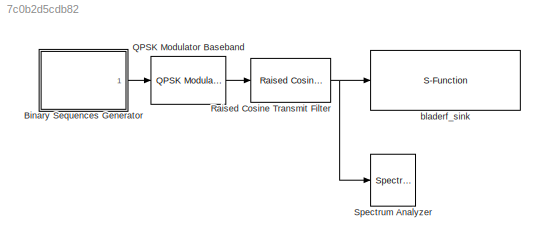
MODEL slx_7c0b2d5cdb82
KIND model
CONFIG AbsTol = auto
CONFIG FixedStep = auto
CONFIG MaxStep = auto
CONFIG MinStep = auto
CONFIG RelTol = 1e-3
CONFIG SampleTimeConstraint = Unconstrained
CONFIG Solver = VariableStepAuto
CONFIG SolverMode = Auto
CONFIG SolverName = VariableStepAuto
CONFIG StartTime = 0.0
CONFIG StopTime = inf
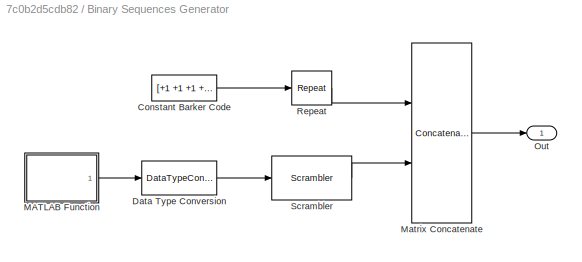
BLOCK [SubSystem] Binary Sequences Generator
  Ports = [0, 1]
  RequestExecContextInheritance = off
  Variant = off
BLOCK [Constant] Binary Sequences Generator/Constant Barker Code
  FramePeriod = 888/2e6
  OutDataTypeStr = boolean
  SampleTime = 1
  SamplingMode = Frame based
  Value = [+1 +1 +1 +1 +1 -1 -1 +1 +1 -1 +1 -1 +1\n].' > 0  % Bipolar to Unipolar Conversion
  VectorParams1D = off
BLOCK [DataTypeConversion] Binary Sequences Generator/Data Type Conversion
  OutDataTypeStr = boolean
  RndMeth = Floor
  SaturateOnIntegerOverflow = off
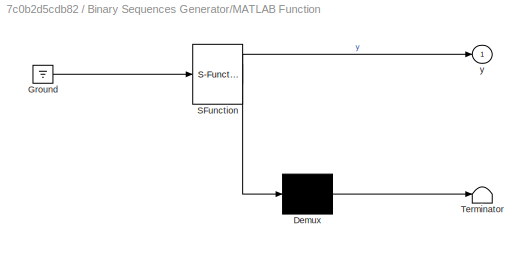
BLOCK [SubSystem] Binary Sequences Generator/MATLAB Function
  ErrorFcn = Stateflow.Translate.translate
  PermitHierarchicalResolution = ExplicitOnly
  Ports = [0, 1]
  RequestExecContextInheritance = off
  SFBlockType = MATLAB Function
  TreatAsAtomicUnit = on
  Variant = off
BLOCK [Demux] Binary Sequences Generator/MATLAB Function/ Demux 
  Outputs = 1
  Ports = [1, 1]
BLOCK [Ground] Binary Sequences Generator/MATLAB Function/ Ground 
BLOCK [S-Function] Binary Sequences Generator/MATLAB Function/ SFunction 
  EnableBusSupport = on
  FunctionName = sf_sfun
  PortCounts = [1 2]
  Ports = [1, 2]
  SFunctionDeploymentMode = off
  Tag = Stateflow S-Function QpskTxBradeRf 3
BLOCK [Terminator] Binary Sequences Generator/MATLAB Function/ Terminator 
BLOCK [Outport] Binary Sequences Generator/MATLAB Function/y
  IconDisplay = Port number
BLOCK [Concatenate] Binary Sequences Generator/Matrix Concatenate
  Mode = Multidimensional array
  Ports = [2, 1]
BLOCK [Outport] Binary Sequences Generator/Out
  IconDisplay = Port number
BLOCK [Reference] Binary Sequences Generator/Repeat  REF=dspsigops/Repeat
  Ports = [1, 1]
  SourceBlock = dspsigops/Repeat
  SourceType = Repeat
  UserDataPersistent = on
BLOCK [Reference] Binary Sequences Generator/Scrambler  REF=commsequence2/Scrambler
  Ports = [1, 1]
  SourceBlock = commsequence2/Scrambler
  SourceType = Scrambler
BLOCK [Reference] QPSK Modulator Baseband  REF=commdigbbndpm3/QPSK
Modulator
Baseband
  Ports = [1, 1]
  SourceBlock = commdigbbndpm3/QPSK\nModulator\nBaseband
  SourceType = QPSK Modulator Baseband
BLOCK [Reference] Raised Cosine Transmit Filter  REF=commfilt2/Raised Cosine
Transmit Filter
  Ports = [1, 1]
  SourceBlock = commfilt2/Raised Cosine\nTransmit Filter
  SourceType = Raised Cosine Transmit Filter
  UserDataPersistent = on
BLOCK [SpectrumAnalyzer] Spectrum Analyzer
  Ports = [1]
  ScopeSpecificationString = spbscopes.SpectrumAnalyzerBlockCfg('CurrentConfiguration', extmgr.ConfigurationSet(extmgr.Configuration('Core','General UI',true),extmgr.Configuration('Core','Source UI',true),extmgr.Configuration('Sources','WiredSimulink',true),extmgr.Configuration('Visuals','Spectrum',true,'AxesProperties',struct('Color',[0 0 0],'XColor',[0.686274509803922 0.686274509803922 0.686274509803922],'YColor',[0.6862745...<+1228ch>
BLOCK [S-Function] bladerf_sink
  EnableBusSupport = off
  FunctionName = bladerf_sink
  Parameters = set_index,samplerate,set_bandwidth,set_freq,set_txvga1,set_txvga2,set_frame,set_frame_type
  Ports = [1]
  SFunctionDeploymentMode = off
LINE Binary Sequences Generator/Constant Barker Code:1 -> Binary Sequences Generator/Repeat:1
LINE Binary Sequences Generator/Data Type Conversion:1 -> Binary Sequences Generator/Scrambler:1
LINE Binary Sequences Generator/MATLAB Function:1 -> Binary Sequences Generator/Data Type Conversion:1
LINE Binary Sequences Generator/Matrix Concatenate:1 -> Binary Sequences Generator/Out:1
LINE Binary Sequences Generator/Repeat:1 -> Binary Sequences Generator/Matrix Concatenate:1
LINE Binary Sequences Generator/Scrambler:1 -> Binary Sequences Generator/Matrix Concatenate:2
LINE Binary Sequences Generator:1 -> QPSK Modulator Baseband:1
LINE QPSK Modulator Baseband:1 -> Raised Cosine Transmit Filter:1
NET Raised Cosine Transmit Filter:1 -> Spectrum Analyzer:1, bladerf_sink:1
note: NET lines group one-source signal fan-out (src -> all destinations, sorted); 1:1 wires keep LINE
CHART Binary Sequences Generator/MATLAB Function states=1 transitions=1
  STATE_LABEL 'eML_blk_kernel()'
  STATE_LABEL "SCRIPT:\nfunction y = fcn()\n% Generate a sequence of binary numbers\n\n% String of a payload\nstring = 'This is a QPSK Transmitter';\n\n% Convert to a sequence of binary numbers\nbinary = de2bi(int8(string),7,'left-msb');\ny_buf = reshape(binary, [numel(binary) 1]);\n\n% Add 2bits in order to divide a payload including a sequence of Barcar\n% codes by 2(QPSK: 2bits/symbol) without a remainder.\ny = [y_buf ; 0...<+54ch>"
